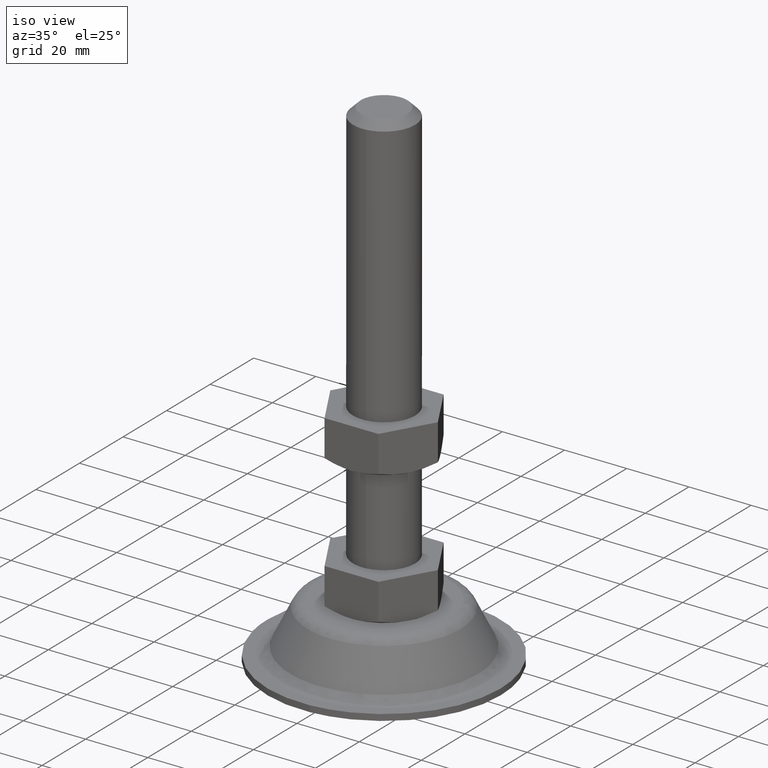
[diagram: clean part render]
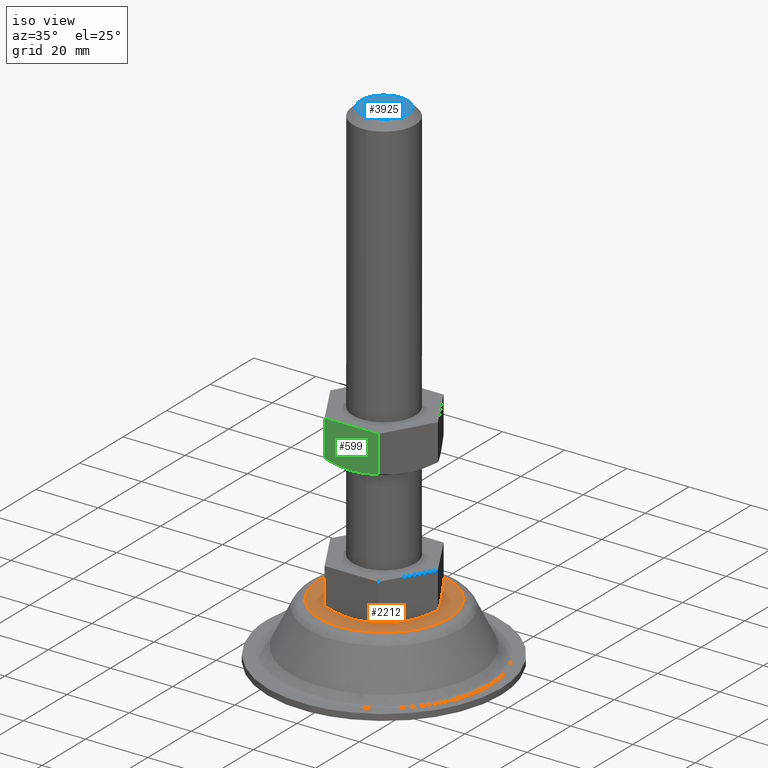
[diagram: same view with three faces highlighted in distinct colors, each labeled with its STEP entity id]
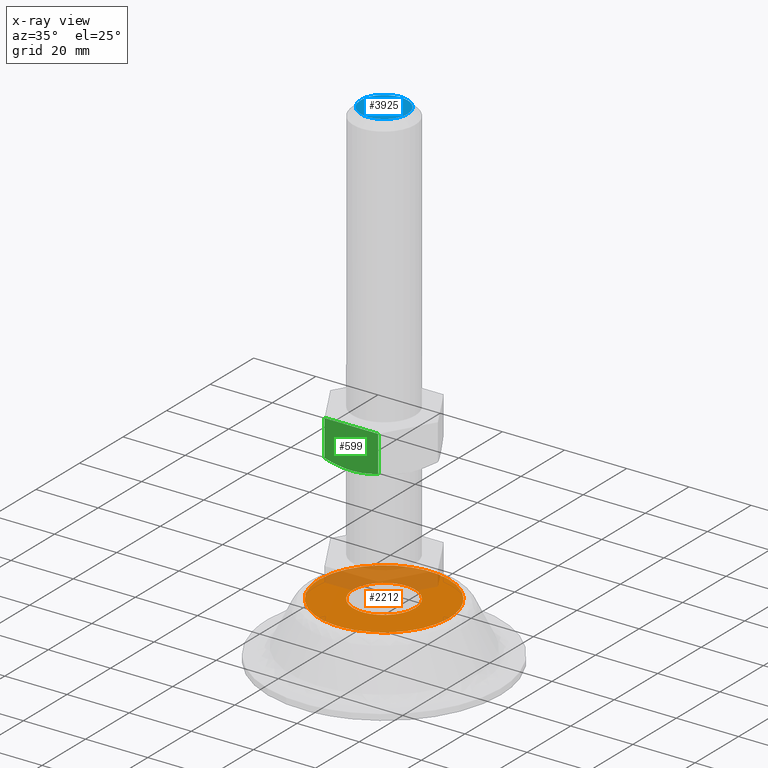
[diagram: x-ray of the same camera — body ghosted, the three highlighted faces saturated]
A machine part, iso view with three faces highlighted in distinct colors.
The next image is the same camera in x-ray (body ghosted, the three faces saturated) — at least one of them is partly hidden behind the body in this view.
Their STEP definitions:

[orange] entity #2212 — the highlighted face is a freeform B-spline surface patch.
#741=CARTESIAN_POINT('',(-1.180342346694433,9.930095263621585,18.0));
#742=VERTEX_POINT('',#741);
#743=CARTESIAN_POINT('',(10.0,0.0,18.0));
#744=VERTEX_POINT('',#743);
#745=CARTESIAN_POINT('',(-1.180342346694433,9.930095263621585,18.0));
#746=CARTESIAN_POINT('',(-0.592241196647291,10.0,18.0));
#747=CARTESIAN_POINT('',(0.0,10.0,18.0));
#748=CARTESIAN_POINT('',(10.000000000000002,10.000000000000002,18.000000000000007));
#749=CARTESIAN_POINT('',(10.0,0.0,18.0));
#757=(BOUNDED_CURVE()B_SPLINE_CURVE(2,(#745,#746,#747,#748,#749),.UNSPECIFIED.,.F.,.U.)B_SPLINE_CURVE_WITH_KNOTS((3,2,3),(0.229562473511327,0.250000000000000,0.500000000000000),.UNSPECIFIED.)CURVE()GEOMETRIC_REPRESENTATION_ITEM()RATIONAL_B_SPLINE_CURVE((0.956026754179423,0.976055948328589,1.0,0.707106781186548,1.0))REPRESENTATION_ITEM(''));
#758=EDGE_CURVE('',#742,#744,#757,.T.);
#799=CARTESIAN_POINT('',(0.610485395544084,-9.981347984206710,18.0));
#800=VERTEX_POINT('',#799);
#806=CARTESIAN_POINT('',(10.0,0.0,18.0));
#807=CARTESIAN_POINT('',(10.0,-9.407060668687699,18.000000000000007));
#808=CARTESIAN_POINT('',(0.610485395544084,-9.981347984206710,18.000000000000004));
#816=(BOUNDED_CURVE()B_SPLINE_CURVE(2,(#806,#807,#808),.UNSPECIFIED.,.F.,.U.)B_SPLINE_CURVE_WITH_KNOTS((3,3),(0.500000000000000,0.739332962235208),.UNSPECIFIED.)CURVE()GEOMETRIC_REPRESENTATION_ITEM()RATIONAL_B_SPLINE_CURVE((1.0,0.719603993291086,0.976072041658713))REPRESENTATION_ITEM(''));
#817=EDGE_CURVE('',#744,#800,#816,.T.);
#840=CARTESIAN_POINT('',(-10.0,0.0,18.0));
#841=VERTEX_POINT('',#840);
#842=CARTESIAN_POINT('',(-10.0,0.0,18.0));
#843=CARTESIAN_POINT('',(-9.999999999999998,8.881745259285166,18.000000000000004));
#844=CARTESIAN_POINT('',(-1.180342346694433,9.930095263621585,17.999999999999996));
#852=(BOUNDED_CURVE()B_SPLINE_CURVE(2,(#842,#843,#844),.UNSPECIFIED.,.F.,.U.)B_SPLINE_CURVE_WITH_KNOTS((3,3),(0.0,0.229562473511327),.UNSPECIFIED.)CURVE()GEOMETRIC_REPRESENTATION_ITEM()RATIONAL_B_SPLINE_CURVE((1.0,0.731050832857959,0.956026754179423))REPRESENTATION_ITEM(''));
#853=EDGE_CURVE('',#841,#742,#852,.T.);
#855=CARTESIAN_POINT('',(0.610485395544084,-9.981347984206710,18.0));
#856=CARTESIAN_POINT('',(0.305527633181951,-9.999999999999998,17.999999999999996));
#857=CARTESIAN_POINT('',(0.0,-10.0,18.0));
#858=CARTESIAN_POINT('',(-10.000000000000002,-10.000000000000002,18.000000000000007));
#859=CARTESIAN_POINT('',(-10.0,0.0,18.0));
#867=(BOUNDED_CURVE()B_SPLINE_CURVE(2,(#855,#856,#857,#858,#859),.UNSPECIFIED.,.F.,.U.)B_SPLINE_CURVE_WITH_KNOTS((3,2,3),(0.739332962235209,0.750000000000000,1.0),.UNSPECIFIED.)CURVE()GEOMETRIC_REPRESENTATION_ITEM()RATIONAL_B_SPLINE_CURVE((0.976072041658715,0.987502787895462,1.0,0.707106781186548,1.0))REPRESENTATION_ITEM(''));
#868=EDGE_CURVE('',#800,#841,#867,.T.);
#2074=CARTESIAN_POINT('',(9.388559233720365,-18.715872616396350,18.000000000000099));
#2075=VERTEX_POINT('',#2074);
#2076=CARTESIAN_POINT('',(-20.938694608125552,0.0,18.0));
#2077=VERTEX_POINT('',#2076);
#2078=CARTESIAN_POINT('',(9.388559233720365,-18.715872616396350,18.000000000000099));
#2079=CARTESIAN_POINT('',(4.957415710968405,-20.938694608125545,18.000000000000011));
#2080=CARTESIAN_POINT('',(0.0,-20.938694608125552,18.0));
#2081=CARTESIAN_POINT('',(-20.938694608125555,-20.938694608125555,18.000000000000007));
#2082=CARTESIAN_POINT('',(-20.938694608125552,0.0,18.0));
#2090=(BOUNDED_CURVE()B_SPLINE_CURVE(2,(#2078,#2079,#2080,#2081,#2082),.UNSPECIFIED.,.F.,.U.)B_SPLINE_CURVE_WITH_KNOTS((3,2,3),(0.673769062107955,0.750000000000000,1.0),.UNSPECIFIED.)CURVE()GEOMETRIC_REPRESENTATION_ITEM()RATIONAL_B_SPLINE_CURVE((0.875845342755623,0.910689900910522,1.0,0.707106781186548,1.0))REPRESENTATION_ITEM(''));
#2091=EDGE_CURVE('',#2075,#2077,#2090,.T.);
#2093=CARTESIAN_POINT('',(18.715872616023500,9.388559233505411,18.000000000000099));
#2094=VERTEX_POINT('',#2093);
#2095=CARTESIAN_POINT('',(-20.938694608125552,0.0,18.0));
#2096=CARTESIAN_POINT('',(-20.938694608125555,20.938694608125555,18.000000000000007));
#2097=CARTESIAN_POINT('',(0.0,20.938694608125552,18.0));
#2098=CARTESIAN_POINT('',(12.921906577954934,20.938694608125548,18.000000000000011));
#2099=CARTESIAN_POINT('',(18.715872616023496,9.388559233505411,18.000000000000099));
#2107=(BOUNDED_CURVE()B_SPLINE_CURVE(2,(#2095,#2096,#2097,#2098,#2099),.UNSPECIFIED.,.F.,.U.)B_SPLINE_CURVE_WITH_KNOTS((3,2,3),(0.0,0.250000000000000,0.423769062108323),.UNSPECIFIED.)CURVE()GEOMETRIC_REPRESENTATION_ITEM()RATIONAL_B_SPLINE_CURVE((1.0,0.707106781186548,1.0,0.796416880275594,0.875845342755960))REPRESENTATION_ITEM(''));
#2108=EDGE_CURVE('',#2077,#2094,#2107,.T.);
#2160=CARTESIAN_POINT('',(20.938694608125552,0.0,18.0));
#2161=VERTEX_POINT('',#2160);
#2162=CARTESIAN_POINT('',(20.938694608125552,0.0,18.0));
#2163=CARTESIAN_POINT('',(20.938694608125548,-12.921906577920389,18.000000000000004));
#2164=CARTESIAN_POINT('',(9.388559233720365,-18.715872616396346,18.000000000000107));
#2172=(BOUNDED_CURVE()B_SPLINE_CURVE(2,(#2162,#2163,#2164),.UNSPECIFIED.,.F.,.U.)B_SPLINE_CURVE_WITH_KNOTS((3,3),(0.500000000000000,0.673769062107954),.UNSPECIFIED.)CURVE()GEOMETRIC_REPRESENTATION_ITEM()RATIONAL_B_SPLINE_CURVE((1.0,0.796416880276027,0.875845342755622))REPRESENTATION_ITEM(''));
#2173=EDGE_CURVE('',#2161,#2075,#2172,.T.);
#2179=CARTESIAN_POINT('',(18.715872616023493,9.388559233505411,18.000000000000103));
#2180=CARTESIAN_POINT('',(20.938694608125555,4.957415710942052,18.000000000000004));
#2181=CARTESIAN_POINT('',(20.938694608125552,0.0,18.0));
#2189=(BOUNDED_CURVE()B_SPLINE_CURVE(2,(#2179,#2180,#2181),.UNSPECIFIED.,.F.,.U.)B_SPLINE_CURVE_WITH_KNOTS((3,3),(0.423769062108324,0.500000000000000),.UNSPECIFIED.)CURVE()GEOMETRIC_REPRESENTATION_ITEM()RATIONAL_B_SPLINE_CURVE((0.875845342755960,0.910689900910954,1.0))REPRESENTATION_ITEM(''));
#2190=EDGE_CURVE('',#2094,#2161,#2189,.T.);
#2195=CARTESIAN_POINT('',(-23.030469575580369,-23.028712848525242,18.0));
#2196=CARTESIAN_POINT('',(23.030468077928219,-23.028712848525242,18.0));
#2197=CARTESIAN_POINT('',(-23.030469575580369,23.016810248588751,18.0));
#2198=CARTESIAN_POINT('',(23.030468077928219,23.016810248588751,18.0));
#2199=B_SPLINE_SURFACE_WITH_KNOTS('',1,1,((#2195,#2197),(#2196,#2198)),.UNSPECIFIED.,.F.,.F.,.U.,(2,2),(2,2),(0.0,46.060937653508589),(0.0,46.045523097113993),.UNSPECIFIED.);
#2200=ORIENTED_EDGE('',*,*,#2091,.F.);
#2201=ORIENTED_EDGE('',*,*,#2173,.F.);
#2202=ORIENTED_EDGE('',*,*,#2190,.F.);
#2203=ORIENTED_EDGE('',*,*,#2108,.F.);
#2204=EDGE_LOOP('',(#2200,#2201,#2202,#2203));
#2205=FACE_OUTER_BOUND('',#2204,.T.);
#2206=ORIENTED_EDGE('',*,*,#817,.T.);
#2207=ORIENTED_EDGE('',*,*,#868,.T.);
#2208=ORIENTED_EDGE('',*,*,#853,.T.);
#2209=ORIENTED_EDGE('',*,*,#758,.T.);
#2210=EDGE_LOOP('',(#2206,#2207,#2208,#2209));
#2211=FACE_BOUND('',#2210,.T.);
#2212=ADVANCED_FACE('',(#2205,#2211),#2199,.T.);

[blue] entity #3925 — the highlighted face is a freeform B-spline surface patch.
#2809=CARTESIAN_POINT('',(-1.373427217252968,-7.373174192907676,160.999999999996590));
#2810=VERTEX_POINT('',#2809);
#2816=CARTESIAN_POINT('',(-7.500000000000000,0.0,161.0));
#2817=VERTEX_POINT('',#2816);
#2818=CARTESIAN_POINT('',(-7.500000000000000,0.0,161.0));
#2819=CARTESIAN_POINT('',(-7.500000000000001,-6.231955826386005,160.999999999999970));
#2820=CARTESIAN_POINT('',(-1.373427217252968,-7.373174192907676,160.999999999996590));
#2828=(BOUNDED_CURVE()B_SPLINE_CURVE(2,(#2818,#2819,#2820),.UNSPECIFIED.,.F.,.U.)B_SPLINE_CURVE_WITH_KNOTS((3,3),(0.0,0.218554736285526),.UNSPECIFIED.)CURVE()GEOMETRIC_REPRESENTATION_ITEM()RATIONAL_B_SPLINE_CURVE((1.0,0.743947199209628,0.935586817234537))REPRESENTATION_ITEM(''));
#2829=EDGE_CURVE('',#2817,#2810,#2828,.T.);
#2831=CARTESIAN_POINT('',(0.065449017453173,7.499714423136121,160.999999999834610));
#2832=VERTEX_POINT('',#2831);
#2833=CARTESIAN_POINT('',(0.065449017453173,7.499714423136121,160.999999999834590));
#2834=CARTESIAN_POINT('',(0.032725132369256,7.500000000000000,160.999999999999970));
#2835=CARTESIAN_POINT('',(0.0,7.500000000000000,161.0));
#2836=CARTESIAN_POINT('',(-7.500000000000000,7.500000000000000,161.000000000000090));
#2837=CARTESIAN_POINT('',(-7.500000000000000,0.0,161.0));
#2845=(BOUNDED_CURVE()B_SPLINE_CURVE(2,(#2833,#2834,#2835,#2836,#2837),.UNSPECIFIED.,.F.,.U.)B_SPLINE_CURVE_WITH_KNOTS((3,2,3),(0.748460105607991,0.750000000000000,1.0),.UNSPECIFIED.)CURVE()GEOMETRIC_REPRESENTATION_ITEM()RATIONAL_B_SPLINE_CURVE((0.996414027968441,0.998195901499567,1.0,0.707106781186547,1.0))REPRESENTATION_ITEM(''));
#2846=EDGE_CURVE('',#2832,#2817,#2845,.T.);
#2956=CARTESIAN_POINT('',(7.500000000000000,0.0,161.0));
#2957=VERTEX_POINT('',#2956);
#2958=CARTESIAN_POINT('',(7.500000000000000,0.0,161.0));
#2959=CARTESIAN_POINT('',(7.499999999999999,7.434834077055378,161.0));
#2960=CARTESIAN_POINT('',(0.065449017453173,7.499714423136121,160.999999999834560));
#2968=(BOUNDED_CURVE()B_SPLINE_CURVE(2,(#2958,#2959,#2960),.UNSPECIFIED.,.F.,.U.)B_SPLINE_CURVE_WITH_KNOTS((3,3),(0.500000000000000,0.748460105607990),.UNSPECIFIED.)CURVE()GEOMETRIC_REPRESENTATION_ITEM()RATIONAL_B_SPLINE_CURVE((1.0,0.708910879686981,0.996414027968440))REPRESENTATION_ITEM(''));
#2969=EDGE_CURVE('',#2957,#2832,#2968,.T.);
#2971=CARTESIAN_POINT('',(-1.373427217252969,-7.373174192907676,160.999999999996620));
#2972=CARTESIAN_POINT('',(-0.692569319501514,-7.500000000000000,161.0));
#2973=CARTESIAN_POINT('',(0.0,-7.500000000000000,161.0));
#2974=CARTESIAN_POINT('',(7.500000000000000,-7.500000000000000,161.000000000000090));
#2975=CARTESIAN_POINT('',(7.500000000000000,0.0,161.0));
#2983=(BOUNDED_CURVE()B_SPLINE_CURVE(2,(#2971,#2972,#2973,#2974,#2975),.UNSPECIFIED.,.F.,.U.)B_SPLINE_CURVE_WITH_KNOTS((3,2,3),(0.218554736285526,0.250000000000000,0.500000000000000),.UNSPECIFIED.)CURVE()GEOMETRIC_REPRESENTATION_ITEM()RATIONAL_B_SPLINE_CURVE((0.935586817234536,0.963159581976919,1.0,0.707106781186547,1.0))REPRESENTATION_ITEM(''));
#2984=EDGE_CURVE('',#2810,#2957,#2983,.T.);
#3914=CARTESIAN_POINT('',(-8.249249970927089,8.248936147275339,161.0));
#3915=CARTESIAN_POINT('',(8.249250373258443,8.248936147275339,161.0));
#3916=CARTESIAN_POINT('',(-8.249249970927089,-8.248940975251566,161.0));
#3917=CARTESIAN_POINT('',(8.249250373258443,-8.248940975251566,161.0));
#3918=B_SPLINE_SURFACE_WITH_KNOTS('',1,1,((#3914,#3916),(#3915,#3917)),.UNSPECIFIED.,.F.,.F.,.U.,(2,2),(2,2),(0.0,16.498500344185530),(0.0,16.497877122526909),.UNSPECIFIED.);
#3919=ORIENTED_EDGE('',*,*,#2829,.T.);
#3920=ORIENTED_EDGE('',*,*,#2984,.T.);
#3921=ORIENTED_EDGE('',*,*,#2969,.T.);
#3922=ORIENTED_EDGE('',*,*,#2846,.T.);
#3923=EDGE_LOOP('',(#3919,#3920,#3921,#3922));
#3924=FACE_OUTER_BOUND('',#3923,.T.);
#3925=ADVANCED_FACE('',(#3924),#3918,.F.);

[green] entity #599 — the highlighted face is a freeform B-spline surface patch.
#226=CARTESIAN_POINT('',(8.639746000000001,-15.0,62.345671394023498));
#227=VERTEX_POINT('',#226);
#243=CARTESIAN_POINT('',(-8.639746000000001,-15.0,62.345671394023498));
#244=VERTEX_POINT('',#243);
#245=CARTESIAN_POINT('',(-8.639746000000040,-15.0,62.345671394023391));
#246=CARTESIAN_POINT('',(-7.936833729160880,-15.0,62.143118803509253));
#247=CARTESIAN_POINT('',(-7.227461233591718,-15.0,61.957191362850843));
#248=CARTESIAN_POINT('',(-5.792395982895466,-15.0,61.627336067024530));
#249=CARTESIAN_POINT('',(-5.072865540092748,-15.0,61.484931105763863));
#250=CARTESIAN_POINT('',(-3.630093047437006,-15.0,61.252851617846993));
#251=CARTESIAN_POINT('',(-2.906706002747127,-15.0,61.163194633454047));
#252=CARTESIAN_POINT('',(-1.455476411894551,-15.0,61.042631424531443));
#253=CARTESIAN_POINT('',(-0.727630583971161,-15.0,61.011768473679403));
#254=CARTESIAN_POINT('',(0.732753118449164,-15.0,61.011912443008029));
#255=CARTESIAN_POINT('',(1.465291907568249,-15.0,61.042931423502608));
#256=CARTESIAN_POINT('',(2.383861673901577,-15.0,61.119895832698177));
#257=CARTESIAN_POINT('',(2.567617441095455,-15.0,61.137185060879297));
#258=CARTESIAN_POINT('',(2.933746094967379,-15.0,61.175312715864870));
#259=CARTESIAN_POINT('',(3.481481264012233,-15.0,61.237876046936201));
#260=CARTESIAN_POINT('',(4.025000240808047,-15.0,61.315975503435439));
#261=CARTESIAN_POINT('',(5.828098707583255,-15.0,61.608112828349640));
#262=CARTESIAN_POINT('',(7.243065403558322,-15.0,61.943201150343647));
#263=CARTESIAN_POINT('',(8.639746000000027,-15.0,62.345671394023377));
#264=B_SPLINE_CURVE_WITH_KNOTS('',3,(#245,#246,#247,#248,#249,#250,#251,#252,#253,#254,#255,#256,#257,#258,#259,#260,#261,#262,#263),.UNSPECIFIED.,.F.,.U.,(4,2,2,2,2,2,2,1,2,4),(0.0,0.125000000000000,0.250000000000000,0.375000000000000,0.500000000000000,0.625000000000000,0.656250000000000,0.687500000000000,0.750000000000000,1.0),.UNSPECIFIED.);
#265=EDGE_CURVE('',#244,#227,#264,.T.);
#511=CARTESIAN_POINT('',(-8.639746000000001,-15.0,74.0));
#512=VERTEX_POINT('',#511);
#520=CARTESIAN_POINT('',(8.639746000000001,-15.0,74.0));
#521=VERTEX_POINT('',#520);
#522=CARTESIAN_POINT('',(8.639746000000001,-15.0,74.0));
#523=CARTESIAN_POINT('',(-8.639746000000001,-15.0,74.0));
#524=QUASI_UNIFORM_CURVE('',1,(#522,#523),.UNSPECIFIED.,.F.,.U.);
#525=EDGE_CURVE('',#521,#512,#524,.T.);
#580=CARTESIAN_POINT('',(-9.502856205759496,-15.0,74.648758503804601));
#581=CARTESIAN_POINT('',(-9.502856205759496,-15.0,60.363082409524068));
#582=CARTESIAN_POINT('',(9.502855742287405,-15.0,74.648758503804601));
#583=CARTESIAN_POINT('',(9.502855742287405,-15.0,60.363082409524068));
#584=B_SPLINE_SURFACE_WITH_KNOTS('',1,1,((#580,#582),(#581,#583)),.UNSPECIFIED.,.F.,.F.,.U.,(2,2),(2,2),(0.0,14.285676094280531),(0.0,19.005711948046901),.UNSPECIFIED.);
#585=CARTESIAN_POINT('',(-8.639746000000001,-15.0,74.0));
#586=CARTESIAN_POINT('',(-8.639746000000001,-15.0,62.345671394023498));
#587=QUASI_UNIFORM_CURVE('',1,(#585,#586),.UNSPECIFIED.,.F.,.U.);
#588=EDGE_CURVE('',#512,#244,#587,.T.);
#589=ORIENTED_EDGE('',*,*,#588,.T.);
#590=ORIENTED_EDGE('',*,*,#265,.T.);
#591=CARTESIAN_POINT('',(8.639746000000001,-15.0,74.0));
#592=CARTESIAN_POINT('',(8.639746000000001,-15.0,62.345671394023498));
#593=QUASI_UNIFORM_CURVE('',1,(#591,#592),.UNSPECIFIED.,.F.,.U.);
#594=EDGE_CURVE('',#521,#227,#593,.T.);
#595=ORIENTED_EDGE('',*,*,#594,.F.);
#596=ORIENTED_EDGE('',*,*,#525,.T.);
#597=EDGE_LOOP('',(#589,#590,#595,#596));
#598=FACE_OUTER_BOUND('',#597,.T.);
#599=ADVANCED_FACE('',(#598),#584,.T.);